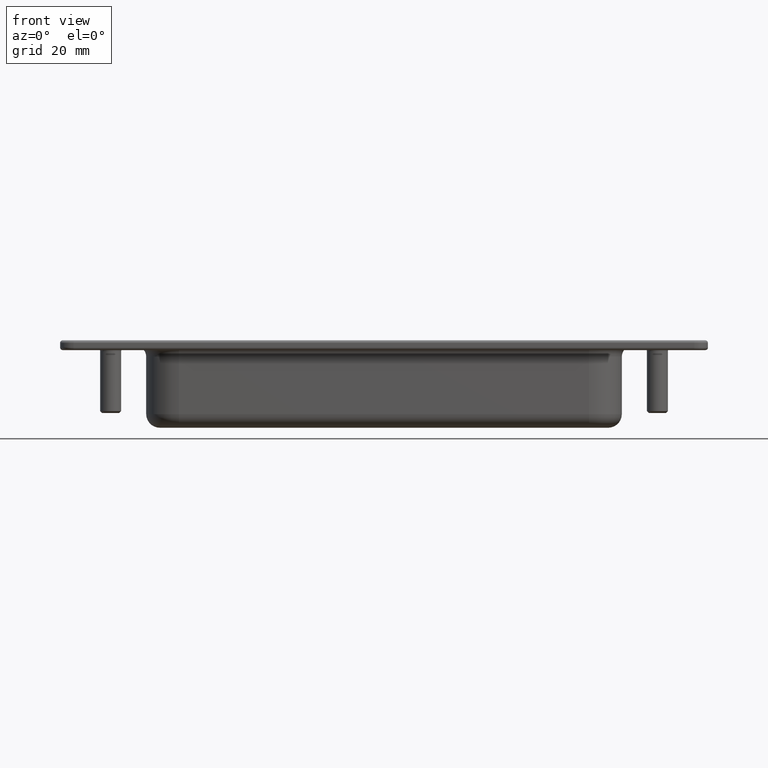
[diagram: clean part render]
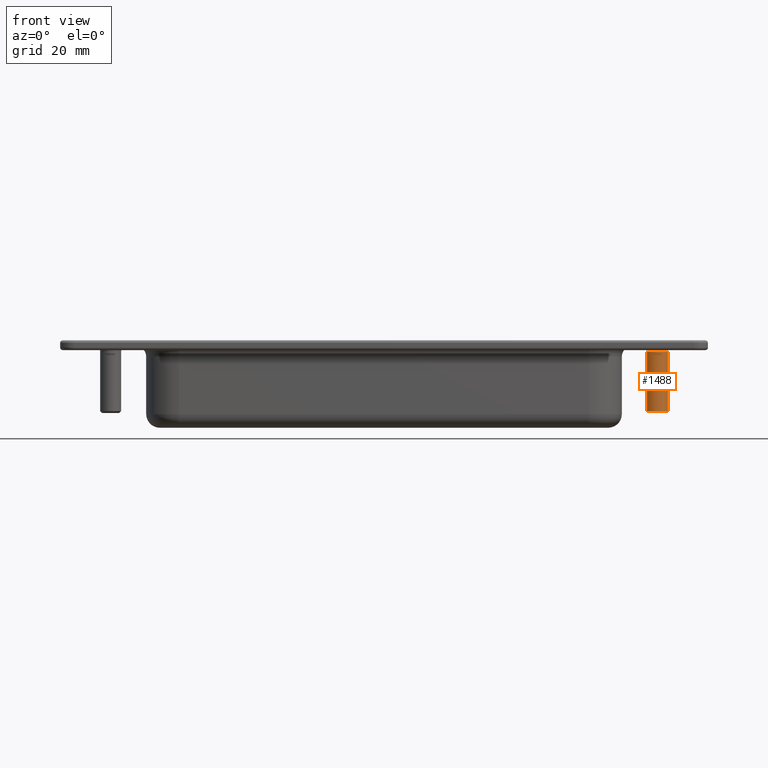
[diagram: same view with one face highlighted and labeled with its STEP entity id]
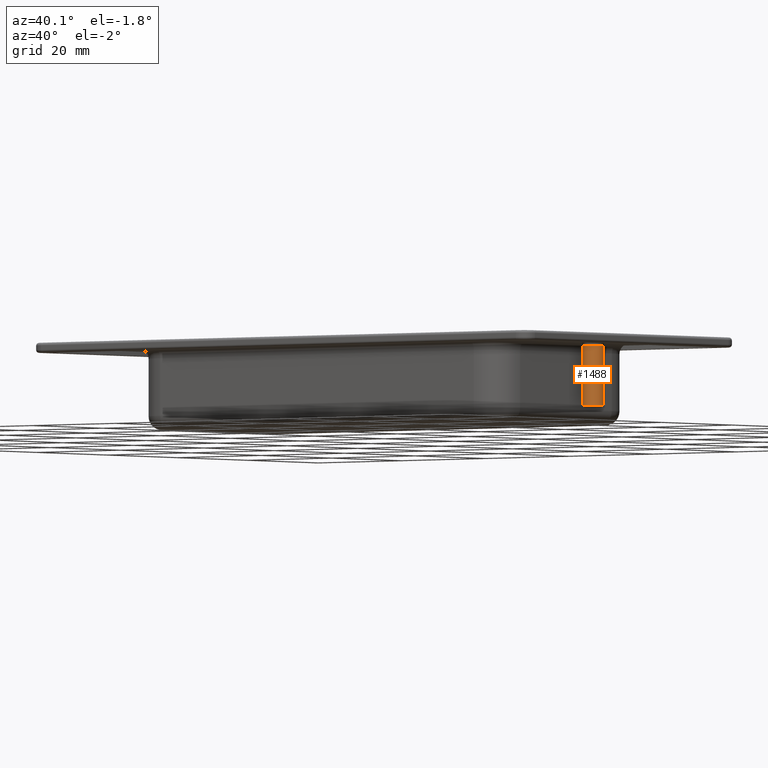
[diagram: same view with one face highlighted and labeled with its STEP entity id]
A machine part, front view. The second image highlights one B-rep face of the part: STEP entity #1488.
A second angle (auxiliary view) of the same face is appended — the face is thin or edge-on in the first view.
In plain terms, the highlighted cylindrical surface (bore or boss wall) has radius 1.925 mm, axis along (0, 0, -1).
Its self-contained STEP definition (entity closure, byte-faithful):
#21=CYLINDRICAL_SURFACE('',#1605,1.925);
#308=FACE_BOUND('',#427,.T.);
#318=FACE_OUTER_BOUND('',#426,.T.);
#426=EDGE_LOOP('',(#1034));
#427=EDGE_LOOP('',(#1035));
#542=CIRCLE('',#1604,1.925);
#543=CIRCLE('',#1606,1.925);
#670=VERTEX_POINT('',#2405);
#671=VERTEX_POINT('',#2408);
#806=EDGE_CURVE('',#670,#670,#542,.T.);
#807=EDGE_CURVE('',#671,#671,#543,.T.);
#1034=ORIENTED_EDGE('',*,*,#806,.F.);
#1035=ORIENTED_EDGE('',*,*,#807,.F.);
#1488=ADVANCED_FACE('',(#318,#308),#21,.T.);
#1604=AXIS2_PLACEMENT_3D('',#2406,#1852,#1853);
#1605=AXIS2_PLACEMENT_3D('',#2407,#1854,#1855);
#1606=AXIS2_PLACEMENT_3D('',#2409,#1856,#1857);
#1852=DIRECTION('center_axis',(0.,0.,1.));
#1853=DIRECTION('ref_axis',(1.,-1.22464679914735E-16,0.));
#1854=DIRECTION('center_axis',(0.,0.,-1.));
#1855=DIRECTION('ref_axis',(-1.,0.,0.));
#1856=DIRECTION('center_axis',(0.,0.,-1.));
#1857=DIRECTION('ref_axis',(1.,0.,0.));
#2405=CARTESIAN_POINT('',(51.925,-2.35744508835865E-16,-2.));
#2406=CARTESIAN_POINT('Origin',(50.,0.,-2.));
#2407=CARTESIAN_POINT('Origin',(50.,0.,-1.));
#2408=CARTESIAN_POINT('',(48.075,2.35744508835865E-16,-12.95));
#2409=CARTESIAN_POINT('Origin',(50.,0.,-12.95));